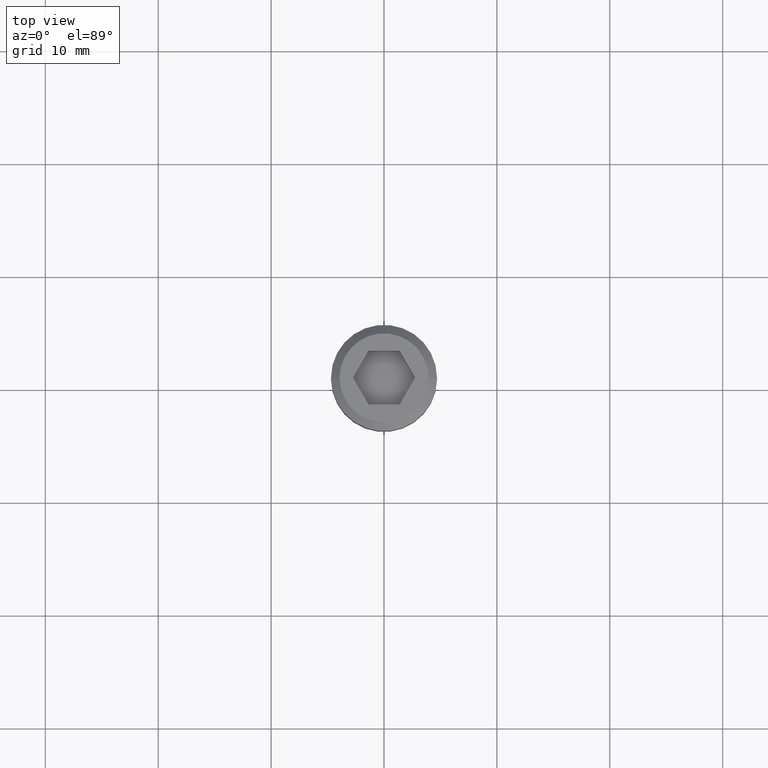
[diagram: clean part render]
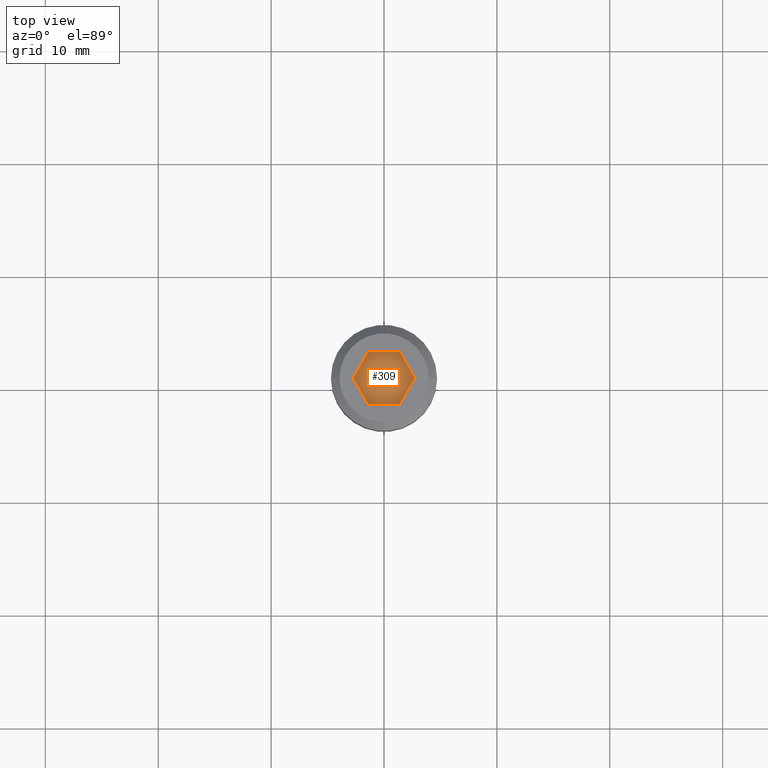
[diagram: same view with one face highlighted and labeled with its STEP entity id]
A machine part, top view. The second image highlights one B-rep face of the part: STEP entity #309.
In plain terms, the highlighted planar face has unit normal (0, -0, 1).
Its self-contained STEP definition (entity closure, byte-faithful):
#17 = EDGE_CURVE ( 'NONE', #188, #78, #444, .T. ) ;
#20 = EDGE_CURVE ( 'NONE', #126, #192, #324, .T. ) ;
#21 = EDGE_CURVE ( 'NONE', #78, #126, #345, .T. ) ;
#34 = EDGE_CURVE ( 'NONE', #123, #110, #341, .T. ) ;
#39 = EDGE_CURVE ( 'NONE', #192, #123, #416, .T. ) ;
#44 = AXIS2_PLACEMENT_3D ( 'NONE', #294, #214, #171 ) ;
#55 = EDGE_CURVE ( 'NONE', #110, #188, #469, .T. ) ;
#78 = VERTEX_POINT ( 'NONE', #104 ) ;
#92 = CARTESIAN_POINT ( 'NONE',  ( 0.1082531754730548500, 6.797912345839970600E-018, -0.1200000000000000000 ) ) ;
#100 = CARTESIAN_POINT ( 'NONE',  ( 0.1082531754730548500, 6.797912345839970600E-018, -0.1200000000000000000 ) ) ;
#104 = CARTESIAN_POINT ( 'NONE',  ( 0.05412658773652740500, 0.09375000000000002800, -0.1200000000000000000 ) ) ;
#110 = VERTEX_POINT ( 'NONE', #122 ) ;
#116 = CARTESIAN_POINT ( 'NONE',  ( 0.05412658773652740500, 0.09375000000000002800, -0.1200000000000000000 ) ) ;
#122 = CARTESIAN_POINT ( 'NONE',  ( 0.05412658773652744700, -0.09375000000000002800, -0.1200000000000000000 ) ) ;
#123 = VERTEX_POINT ( 'NONE', #209 ) ;
#126 = VERTEX_POINT ( 'NONE', #190 ) ;
#132 = CARTESIAN_POINT ( 'NONE',  ( -0.05412658773652744700, 0.09375000000000002800, -0.1200000000000000000 ) ) ;
#133 = DIRECTION ( 'NONE',  ( -0.4999999999999998300, -0.8660254037844388200, 0.0000000000000000000 ) ) ;
#135 = CARTESIAN_POINT ( 'NONE',  ( -0.05412658773652741900, -0.09375000000000002800, -0.1200000000000000000 ) ) ;
#139 = DIRECTION ( 'NONE',  ( 1.000000000000000000, 0.0000000000000000000, 0.0000000000000000000 ) ) ;
#142 = DIRECTION ( 'NONE',  ( -0.5000000000000001100, 0.8660254037844384900, 0.0000000000000000000 ) ) ;
#171 = DIRECTION ( 'NONE',  ( 1.000000000000000000, 0.0000000000000000000, -0.0000000000000000000 ) ) ;
#180 = DIRECTION ( 'NONE',  ( -1.000000000000000000, 0.0000000000000000000, 0.0000000000000000000 ) ) ;
#188 = VERTEX_POINT ( 'NONE', #100 ) ;
#190 = CARTESIAN_POINT ( 'NONE',  ( -0.05412658773652744700, 0.09375000000000002800, -0.1200000000000000000 ) ) ;
#192 = VERTEX_POINT ( 'NONE', #197 ) ;
#197 = CARTESIAN_POINT ( 'NONE',  ( -0.1082531754730548500, -1.708292841017771400E-017, -0.1200000000000000000 ) ) ;
#204 = PLANE ( 'NONE',  #44 ) ;
#209 = CARTESIAN_POINT ( 'NONE',  ( -0.05412658773652741900, -0.09375000000000002800, -0.1200000000000000000 ) ) ;
#214 = DIRECTION ( 'NONE',  ( 0.0000000000000000000, -0.0000000000000000000, 1.000000000000000000 ) ) ;
#233 = DIRECTION ( 'NONE',  ( 0.5000000000000002200, -0.8660254037844386000, 0.0000000000000000000 ) ) ;
#234 = CARTESIAN_POINT ( 'NONE',  ( -0.1082531754730548500, -1.708292841017771400E-017, -0.1200000000000000000 ) ) ;
#253 = DIRECTION ( 'NONE',  ( 0.4999999999999998300, 0.8660254037844388200, 0.0000000000000000000 ) ) ;
#254 = CARTESIAN_POINT ( 'NONE',  ( 0.05412658773652744700, -0.09375000000000002800, -0.1200000000000000000 ) ) ;
#294 = CARTESIAN_POINT ( 'NONE',  ( 0.1623797632095822800, 0.09375000000000002800, -0.1200000000000000000 ) ) ;
#309 = ADVANCED_FACE ( 'NONE', ( #475 ), #204, .T. ) ;
#322 = ORIENTED_EDGE ( 'NONE', *, *, #20, .T. ) ;
#324 = LINE ( 'NONE', #132, #442 ) ;
#341 = LINE ( 'NONE', #135, #476 ) ;
#345 = LINE ( 'NONE', #116, #392 ) ;
#348 = VECTOR ( 'NONE', #142, 39.37007874015748900 ) ;
#392 = VECTOR ( 'NONE', #180, 39.37007874015748100 ) ;
#416 = LINE ( 'NONE', #234, #493 ) ;
#429 = ORIENTED_EDGE ( 'NONE', *, *, #55, .T. ) ;
#442 = VECTOR ( 'NONE', #133, 39.37007874015748900 ) ;
#444 = LINE ( 'NONE', #92, #348 ) ;
#454 = ORIENTED_EDGE ( 'NONE', *, *, #21, .T. ) ;
#461 = ORIENTED_EDGE ( 'NONE', *, *, #34, .T. ) ;
#465 = EDGE_LOOP ( 'NONE', ( #429, #512, #454, #322, #478, #461 ) ) ;
#469 = LINE ( 'NONE', #254, #489 ) ;
#475 = FACE_OUTER_BOUND ( 'NONE', #465, .T. ) ;
#476 = VECTOR ( 'NONE', #139, 39.37007874015748100 ) ;
#478 = ORIENTED_EDGE ( 'NONE', *, *, #39, .T. ) ;
#489 = VECTOR ( 'NONE', #253, 39.37007874015748100 ) ;
#493 = VECTOR ( 'NONE', #233, 39.37007874015747400 ) ;
#512 = ORIENTED_EDGE ( 'NONE', *, *, #17, .T. ) ;